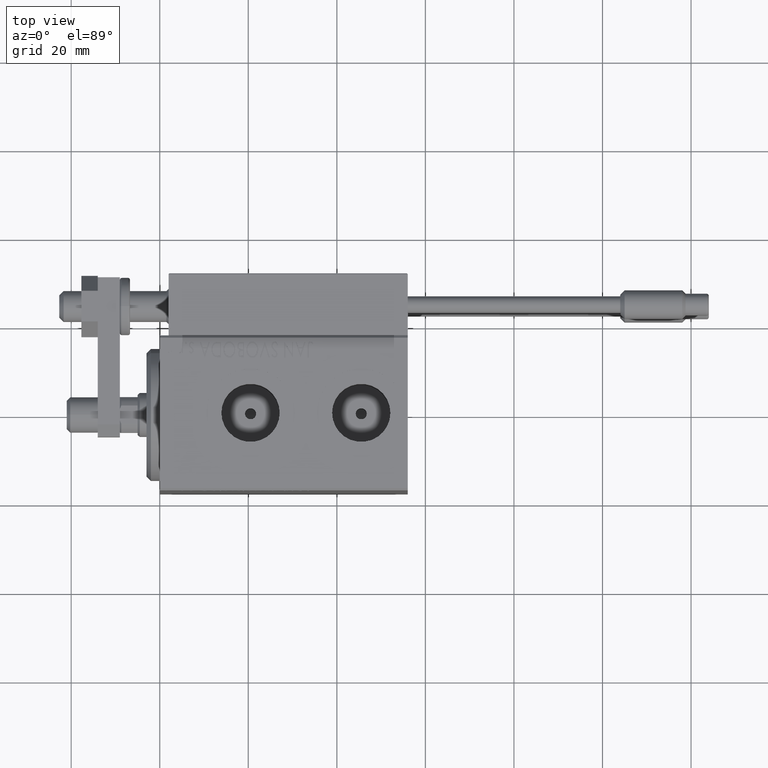
[diagram: clean part render]
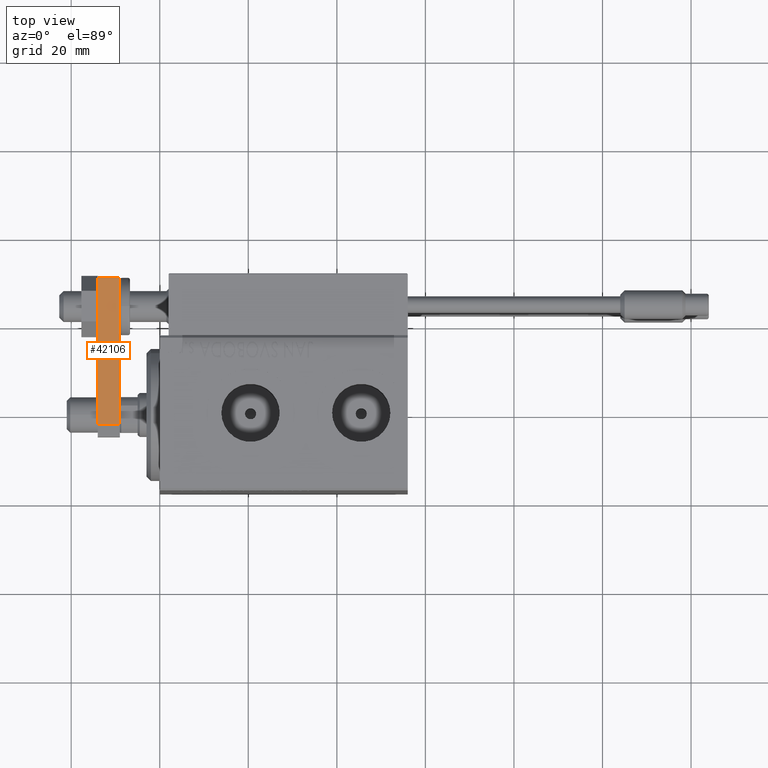
[diagram: same view with one face highlighted and labeled with its STEP entity id]
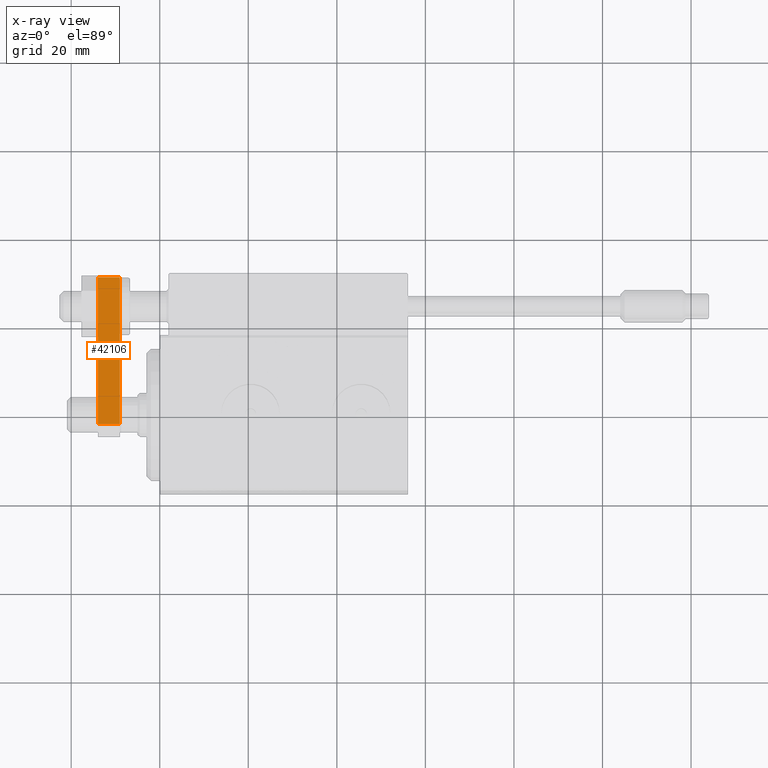
[diagram: x-ray of the same camera — body ghosted, the highlighted face saturated]
A machine part, top view. The second image highlights one B-rep face of the part: STEP entity #42106.
The next image is the same camera in x-ray: the body ghosted, the highlighted face saturated — about 0% of this face is hidden behind the body in this view.
In plain terms, the highlighted planar face has unit normal (0, 0, -1).
Its self-contained STEP definition (entity closure, byte-faithful):
#38 = DIRECTION ( 'NONE',  ( -1.000000000000000000, 3.614007241618348278E-16, 0.000000000000000000 ) ) ;
#1920 = DIRECTION ( 'NONE',  ( -0.000000000000000000, -0.000000000000000000, -1.000000000000000000 ) ) ;
#3377 = EDGE_CURVE ( 'NONE', #26963, #48058, #29317, .T. ) ;
#5487 = ORIENTED_EDGE ( 'NONE', *, *, #43302, .F. ) ;
#5950 = CARTESIAN_POINT ( 'NONE',  ( 5.999999999999995559, 0.000000000000000000, 0.000000000000000000 ) ) ;
#6531 = CARTESIAN_POINT ( 'NONE',  ( 6.000000000000008882, 36.00000000000000000, 5.000000000000000000 ) ) ;
#8304 = VERTEX_POINT ( 'NONE', #32029 ) ;
#10197 = CARTESIAN_POINT ( 'NONE',  ( 6.000000000000008882, 36.00000000000000000, 5.000000000000000000 ) ) ;
#13739 = LINE ( 'NONE', #40872, #37256 ) ;
#14198 = EDGE_CURVE ( 'NONE', #35530, #48058, #32317, .T. ) ;
#14948 = VECTOR ( 'NONE', #40588, 1000.000000000000000 ) ;
#21145 = DIRECTION ( 'NONE',  ( 3.614007241618348278E-16, 1.000000000000000000, 0.000000000000000000 ) ) ;
#22276 = PLANE ( 'NONE',  #28361 ) ;
#22715 = ORIENTED_EDGE ( 'NONE', *, *, #34856, .T. ) ;
#25135 = ORIENTED_EDGE ( 'NONE', *, *, #14198, .T. ) ;
#25279 = LINE ( 'NONE', #36383, #30859 ) ;
#26963 = VERTEX_POINT ( 'NONE', #6531 ) ;
#28361 = AXIS2_PLACEMENT_3D ( 'NONE', #38009, #38, #46558 ) ;
#29317 = LINE ( 'NONE', #10197, #41825 ) ;
#30859 = VECTOR ( 'NONE', #21145, 1000.000000000000000 ) ;
#32029 = CARTESIAN_POINT ( 'NONE',  ( 5.999999999999996447, 2.799999999999997158, 5.000000000000000000 ) ) ;
#32317 = LINE ( 'NONE', #5950, #14948 ) ;
#33097 = DIRECTION ( 'NONE',  ( 0.000000000000000000, 0.000000000000000000, -1.000000000000000000 ) ) ;
#34390 = FACE_OUTER_BOUND ( 'NONE', #45339, .T. ) ;
#34856 = EDGE_CURVE ( 'NONE', #8304, #35530, #13739, .T. ) ;
#35530 = VERTEX_POINT ( 'NONE', #45877 ) ;
#36383 = CARTESIAN_POINT ( 'NONE',  ( 5.999999999999995559, 0.000000000000000000, 5.000000000000000000 ) ) ;
#37256 = VECTOR ( 'NONE', #33097, 1000.000000000000000 ) ;
#38009 = CARTESIAN_POINT ( 'NONE',  ( 5.999999999999995559, 0.000000000000000000, 5.000000000000000000 ) ) ;
#40588 = DIRECTION ( 'NONE',  ( 3.614007241618348278E-16, 1.000000000000000000, 0.000000000000000000 ) ) ;
#40872 = CARTESIAN_POINT ( 'NONE',  ( 5.999999999999996447, 2.799999999999997158, 5.000000000000000000 ) ) ;
#41825 = VECTOR ( 'NONE', #1920, 1000.000000000000000 ) ;
#42106 = ADVANCED_FACE ( 'NONE', ( #34390 ), #22276, .F. ) ;
#43302 = EDGE_CURVE ( 'NONE', #8304, #26963, #25279, .T. ) ;
#45339 = EDGE_LOOP ( 'NONE', ( #5487, #22715, #25135, #46550 ) ) ;
#45877 = CARTESIAN_POINT ( 'NONE',  ( 5.999999999999996447, 2.799999999999997158, 0.000000000000000000 ) ) ;
#46550 = ORIENTED_EDGE ( 'NONE', *, *, #3377, .F. ) ;
#46558 = DIRECTION ( 'NONE',  ( -3.614007241618348278E-16, -1.000000000000000000, 0.000000000000000000 ) ) ;
#48058 = VERTEX_POINT ( 'NONE', #48378 ) ;
#48378 = CARTESIAN_POINT ( 'NONE',  ( 6.000000000000008882, 36.00000000000000000, 0.000000000000000000 ) ) ;